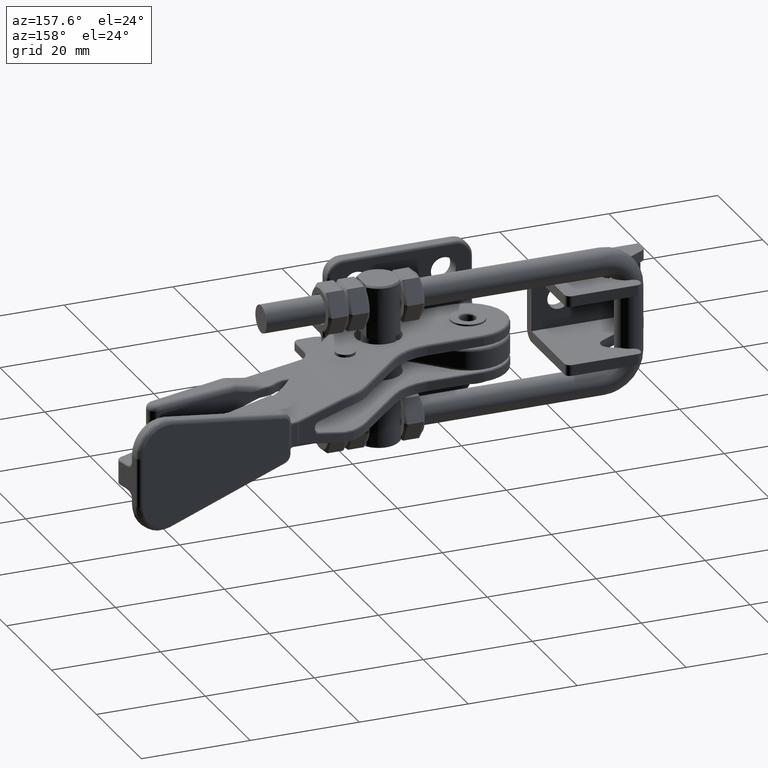
[diagram: clean part render]
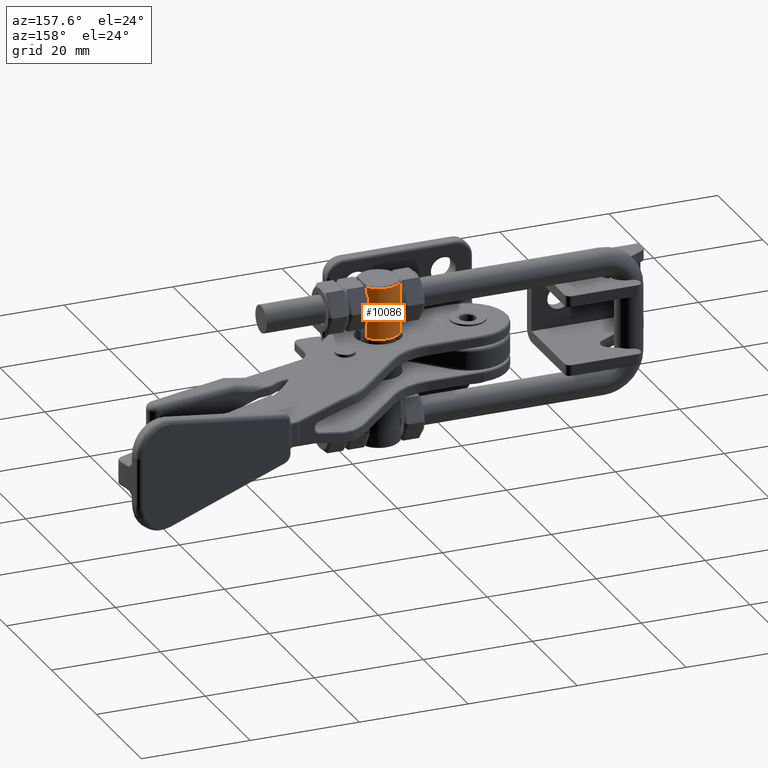
[diagram: same view with one face highlighted and labeled with its STEP entity id]
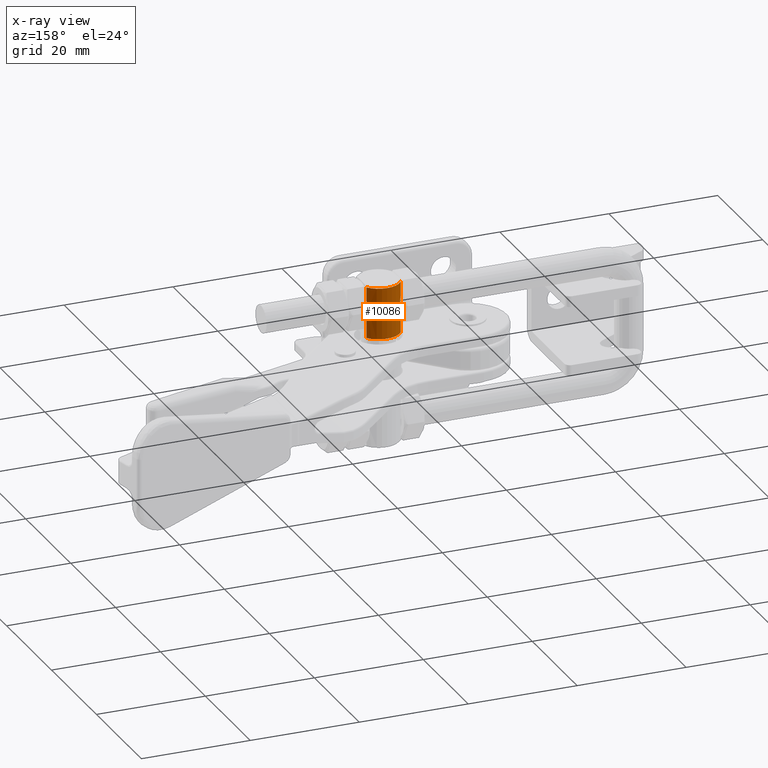
[diagram: x-ray of the same camera — body ghosted, the highlighted face saturated]
A machine part, auxiliary view. The second image highlights one B-rep face of the part: STEP entity #10086.
The next image is the same camera in x-ray: the body ghosted, the highlighted face saturated — about 0% of this face is hidden behind the body in this view.
In plain terms, the highlighted cylindrical surface (edge-blend (fillet) strip) has radius 3.92 mm, axis along (-0, -0, 1).
Its self-contained STEP definition (entity closure, byte-faithful):
#376=B_SPLINE_CURVE_WITH_KNOTS('',3,(#17780,#17781,#17782,#17783,#17784,
#17785,#17786,#17787,#17788,#17789),.UNSPECIFIED.,.F.,.F.,(4,2,2,2,4),(0.698182642142535,
0.713150733127024,0.815656810935593,0.918162888744162,0.93313097972857),
 .UNSPECIFIED.);
#377=B_SPLINE_CURVE_WITH_KNOTS('',3,(#17790,#17791,#17792,#17793,#17794,
#17795,#17796,#17797,#17798,#17799),.UNSPECIFIED.,.F.,.F.,(4,2,2,2,4),(0.698182642142616,
0.713150733127023,0.815656810935593,0.918162888744162,0.93313097972865),
 .UNSPECIFIED.);
#1041=LINE('',#17730,#1600);
#1043=LINE('',#17749,#1602);
#1045=LINE('',#17814,#1604);
#1046=LINE('',#17815,#1605);
#1600=VECTOR('',#12781,4.552785983349);
#1602=VECTOR('',#12787,2.55278654276803);
#1604=VECTOR('',#12799,4.552785983349);
#1605=VECTOR('',#12800,2.55278648003213);
#2271=FACE_OUTER_BOUND('',#2981,.T.);
#2981=EDGE_LOOP('',(#7475,#7476,#7477,#7478,#7479,#7480,#7481,#7482));
#3683=CIRCLE('',#10936,3.92);
#3704=CIRCLE('',#10977,3.92);
#4352=VERTEX_POINT('',#17565);
#4355=VERTEX_POINT('',#17570);
#4382=VERTEX_POINT('',#17726);
#4387=VERTEX_POINT('',#17746);
#4388=VERTEX_POINT('',#17748);
#4390=VERTEX_POINT('',#17763);
#4393=VERTEX_POINT('',#17778);
#4394=VERTEX_POINT('',#17812);
#5441=EDGE_CURVE('',#4352,#4355,#3683,.T.);
#5480=EDGE_CURVE('',#4352,#4382,#1041,.T.);
#5484=EDGE_CURVE('',#4387,#4388,#1043,.T.);
#5490=EDGE_CURVE('',#4390,#4393,#376,.T.);
#5491=EDGE_CURVE('',#4387,#4382,#377,.T.);
#5493=EDGE_CURVE('',#4394,#4388,#3704,.T.);
#5494=EDGE_CURVE('',#4355,#4390,#1045,.T.);
#5495=EDGE_CURVE('',#4393,#4394,#1046,.T.);
#7475=ORIENTED_EDGE('',*,*,#5493,.T.);
#7476=ORIENTED_EDGE('',*,*,#5484,.F.);
#7477=ORIENTED_EDGE('',*,*,#5491,.T.);
#7478=ORIENTED_EDGE('',*,*,#5480,.F.);
#7479=ORIENTED_EDGE('',*,*,#5441,.T.);
#7480=ORIENTED_EDGE('',*,*,#5494,.T.);
#7481=ORIENTED_EDGE('',*,*,#5490,.T.);
#7482=ORIENTED_EDGE('',*,*,#5495,.T.);
#9704=CYLINDRICAL_SURFACE('',#10976,3.92);
#10086=ADVANCED_FACE('',(#2271),#9704,.T.);
#10936=AXIS2_PLACEMENT_3D('',#17572,#12698,#12699);
#10976=AXIS2_PLACEMENT_3D('',#17811,#12795,#12796);
#10977=AXIS2_PLACEMENT_3D('',#17813,#12797,#12798);
#12698=DIRECTION('center_axis',(1.,0.,0.));
#12699=DIRECTION('ref_axis',(0.,0.595208332589183,-0.803571428571477));
#12781=DIRECTION('',(1.,0.,0.));
#12787=DIRECTION('',(0.999999999999521,-9.78411012199319E-7,-3.79030711330708E-8));
#12795=DIRECTION('center_axis',(1.,0.,0.));
#12796=DIRECTION('ref_axis',(0.,0.,1.));
#12797=DIRECTION('center_axis',(-1.,0.,0.));
#12798=DIRECTION('ref_axis',(0.,0.595208332589183,0.803571428571477));
#12799=DIRECTION('',(1.,0.,0.));
#12800=DIRECTION('',(0.999999999999622,-8.68699781075219E-7,3.36634619494807E-8));
#17565=CARTESIAN_POINT('',(5.3,2.33321666375,-3.15));
#17570=CARTESIAN_POINT('',(5.3,2.33321666375,3.15));
#17572=CARTESIAN_POINT('Origin',(5.3,0.,-1.398881011028E-14));
#17726=CARTESIAN_POINT('',(9.852785983349,2.33321666375,-3.15));
#17730=CARTESIAN_POINT('',(5.3,2.33321666375,-3.15));
#17746=CARTESIAN_POINT('',(12.14721401665,2.33321666375,-3.15));
#17748=CARTESIAN_POINT('',(14.7000005594175,2.33321487017183,-3.15000015965746));
#17749=CARTESIAN_POINT('',(12.14721401665,2.33321666375,-3.15));
#17763=CARTESIAN_POINT('',(9.852785983349,2.33321666375,3.15));
#17778=CARTESIAN_POINT('',(12.14721401665,2.33321666375,3.15));
#17780=CARTESIAN_POINT('Ctrl Pts',(9.85278598334911,2.3332166637498,3.15000000000003));
#17781=CARTESIAN_POINT('Ctrl Pts',(9.89766856689605,2.3552848795947,3.13365399081001));
#17782=CARTESIAN_POINT('Ctrl Pts',(9.94332226764287,2.37612299757805,3.11785961420035));
#17783=CARTESIAN_POINT('Ctrl Pts',(10.3069177830027,2.52946581409047,2.99946346943355));
#17784=CARTESIAN_POINT('Ctrl Pts',(10.6583130739714,2.6,2.93366664772941));
#17785=CARTESIAN_POINT('Ctrl Pts',(11.3416869260286,2.6,2.93366664772941));
#17786=CARTESIAN_POINT('Ctrl Pts',(11.6930822169973,2.52946581409047,2.99946346943355));
#17787=CARTESIAN_POINT('Ctrl Pts',(12.0566777323569,2.37612299757815,3.11785961420027));
#17788=CARTESIAN_POINT('Ctrl Pts',(12.1023314331035,2.35528487959493,3.13365399080984));
#17789=CARTESIAN_POINT('Ctrl Pts',(12.1472140166502,2.33321666375015,3.14999999999976));
#17790=CARTESIAN_POINT('Ctrl Pts',(12.1472140166502,2.33321666375016,-3.14999999999979));
#17791=CARTESIAN_POINT('Ctrl Pts',(12.1023314331035,2.35528487959493,-3.13365399080987));
#17792=CARTESIAN_POINT('Ctrl Pts',(12.0566777323569,2.37612299757815,-3.1178596142003));
#17793=CARTESIAN_POINT('Ctrl Pts',(11.6930822169973,2.52946581409047,-2.99946346943357));
#17794=CARTESIAN_POINT('Ctrl Pts',(11.3416869260286,2.6,-2.93366664772944));
#17795=CARTESIAN_POINT('Ctrl Pts',(10.6583130739714,2.6,-2.93366664772944));
#17796=CARTESIAN_POINT('Ctrl Pts',(10.3069177830027,2.52946581409047,-2.99946346943357));
#17797=CARTESIAN_POINT('Ctrl Pts',(9.94332226764288,2.37612299757805,-3.11785961420038));
#17798=CARTESIAN_POINT('Ctrl Pts',(9.89766856689606,2.3552848795947,-3.13365399081004));
#17799=CARTESIAN_POINT('Ctrl Pts',(9.85278598334912,2.3332166637498,-3.15000000000005));
#17811=CARTESIAN_POINT('Origin',(-16.5,0.,-1.398881011028E-14));
#17812=CARTESIAN_POINT('',(14.7000004966817,2.33321507128915,3.15000014177234));
#17813=CARTESIAN_POINT('Origin',(14.7,0.,-1.398881011028E-14));
#17814=CARTESIAN_POINT('',(5.3,2.33321666375,3.15));
#17815=CARTESIAN_POINT('',(12.14721401665,2.33321666375,3.15));